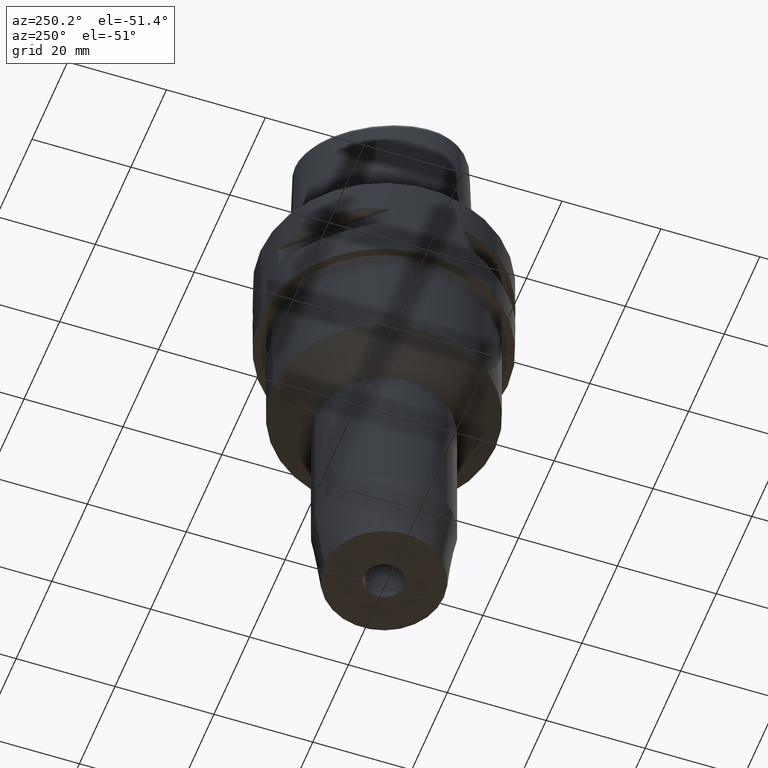
[diagram: clean part render]
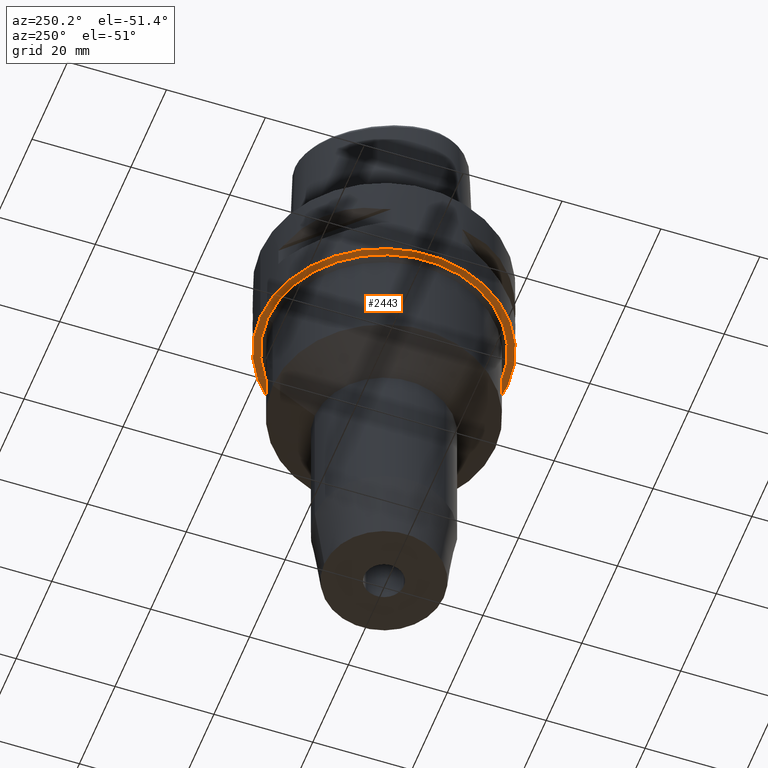
[diagram: same view with one face highlighted and labeled with its STEP entity id]
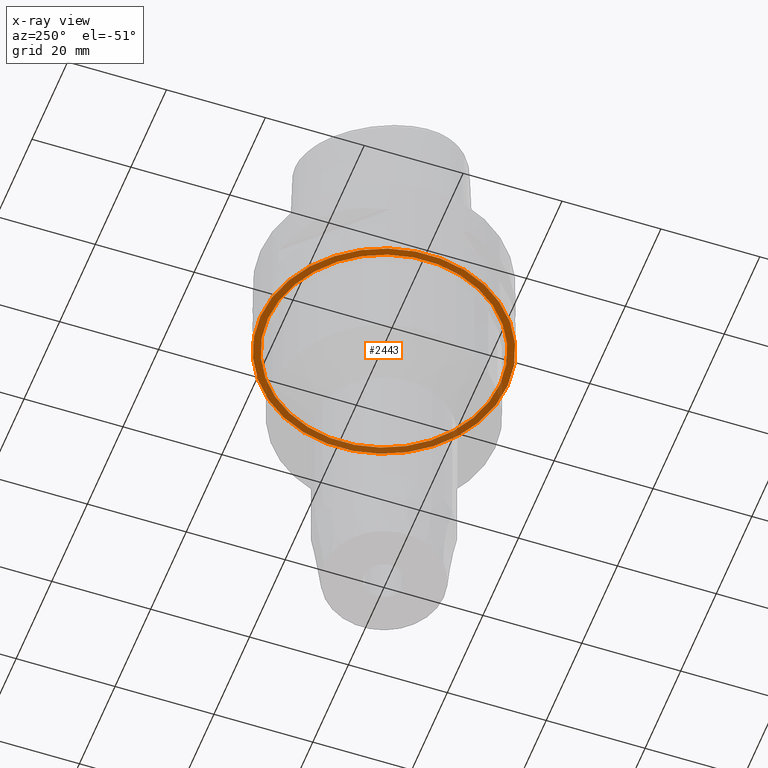
[diagram: x-ray of the same camera — body ghosted, the highlighted face saturated]
A machine part, auxiliary view. The second image highlights one B-rep face of the part: STEP entity #2443.
The next image is the same camera in x-ray: the body ghosted, the highlighted face saturated — about 38% of this face is hidden behind the body in this view.
In plain terms, the highlighted planar face has unit normal (0, 0, -1).
Its self-contained STEP definition (entity closure, byte-faithful):
#490=CARTESIAN_POINT('',(0.E0,1.279755905109E-14,-2.E1));
#491=DIRECTION('',(0.E0,0.E0,1.E0));
#492=DIRECTION('',(0.E0,-1.E0,0.E0));
#493=AXIS2_PLACEMENT_3D('',#490,#491,#492);
#498=CARTESIAN_POINT('',(0.E0,1.279755905109E-14,-2.E1));
#499=DIRECTION('',(0.E0,0.E0,1.E0));
#500=DIRECTION('',(0.E0,1.E0,0.E0));
#501=AXIS2_PLACEMENT_3D('',#498,#499,#500);
#506=CARTESIAN_POINT('',(0.E0,0.E0,-2.E1));
#507=DIRECTION('',(0.E0,0.E0,-1.E0));
#508=DIRECTION('',(0.E0,-1.E0,0.E0));
#509=AXIS2_PLACEMENT_3D('',#506,#507,#508);
#514=CARTESIAN_POINT('',(0.E0,0.E0,-2.E1));
#515=DIRECTION('',(0.E0,0.E0,-1.E0));
#516=DIRECTION('',(0.E0,1.E0,0.E0));
#517=AXIS2_PLACEMENT_3D('',#514,#515,#516);
#1546=CARTESIAN_POINT('',(0.E0,2.5E1,-2.E1));
#1547=VERTEX_POINT('',#1546);
#1548=CARTESIAN_POINT('',(0.E0,-2.5E1,-2.E1));
#1549=VERTEX_POINT('',#1548);
#1602=CARTESIAN_POINT('',(0.E0,-2.35E1,-2.E1));
#1603=CARTESIAN_POINT('',(0.E0,2.35E1,-2.E1));
#1604=VERTEX_POINT('',#1602);
#1605=VERTEX_POINT('',#1603);
#2428=CARTESIAN_POINT('',(0.E0,0.E0,-2.E1));
#2429=DIRECTION('',(0.E0,0.E0,-1.E0));
#2430=DIRECTION('',(0.E0,-1.E0,0.E0));
#2431=AXIS2_PLACEMENT_3D('',#2428,#2429,#2430);
#2432=PLANE('',#2431);
#2433=ORIENTED_EDGE('',*,*,#2385,.T.);
#2434=ORIENTED_EDGE('',*,*,#2338,.T.);
#2435=EDGE_LOOP('',(#2433,#2434));
#2436=FACE_OUTER_BOUND('',#2435,.F.);
#2438=ORIENTED_EDGE('',*,*,#2437,.T.);
#2440=ORIENTED_EDGE('',*,*,#2439,.T.);
#2441=EDGE_LOOP('',(#2438,#2440));
#2442=FACE_BOUND('',#2441,.F.);
#494=CIRCLE('',#493,2.5E1);
#502=CIRCLE('',#501,2.5E1);
#510=CIRCLE('',#509,2.35E1);
#518=CIRCLE('',#517,2.35E1);
#2338=EDGE_CURVE('',#1547,#1549,#502,.T.);
#2385=EDGE_CURVE('',#1549,#1547,#494,.T.);
#2437=EDGE_CURVE('',#1604,#1605,#510,.T.);
#2439=EDGE_CURVE('',#1605,#1604,#518,.T.);
#2443=ADVANCED_FACE('',(#2436,#2442),#2432,.T.);